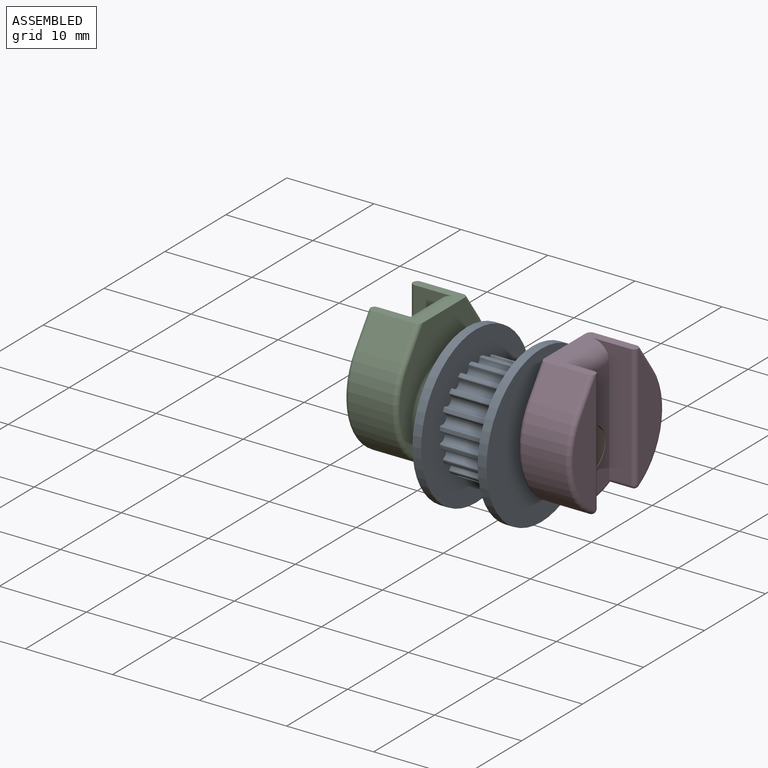
[diagram: assembled view]
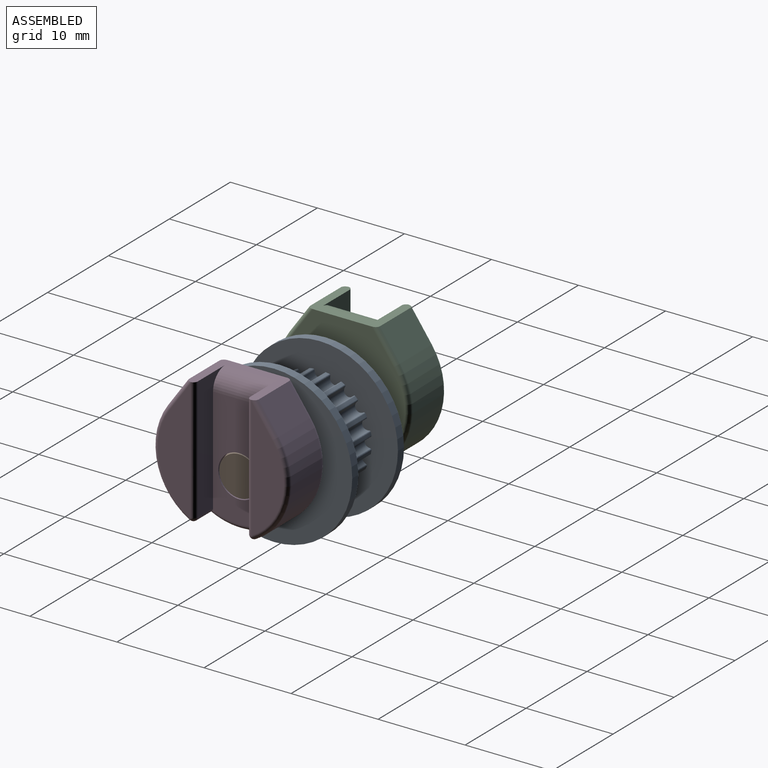
[diagram: assembled view, second angle]
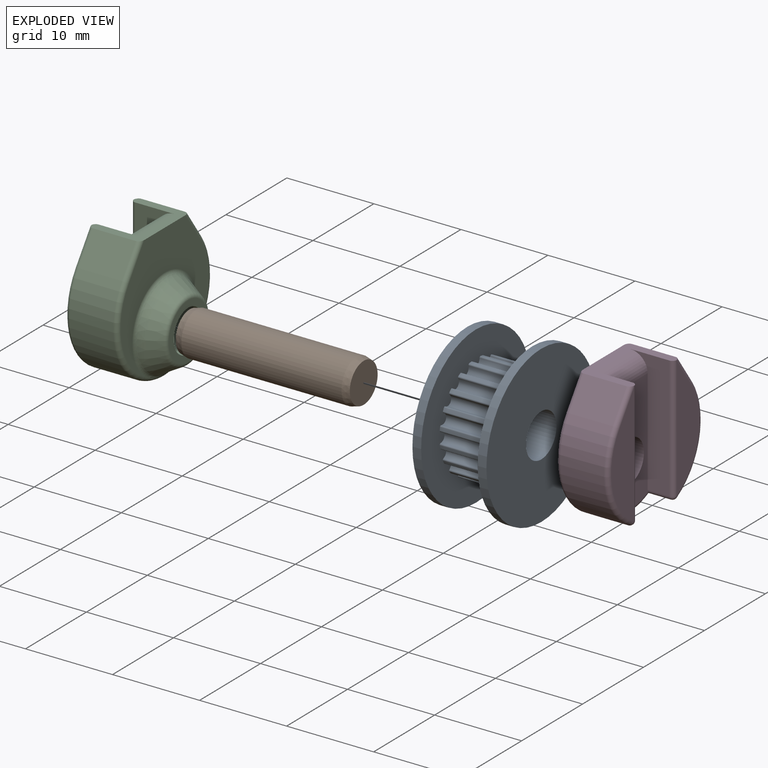
[diagram: exploded view]
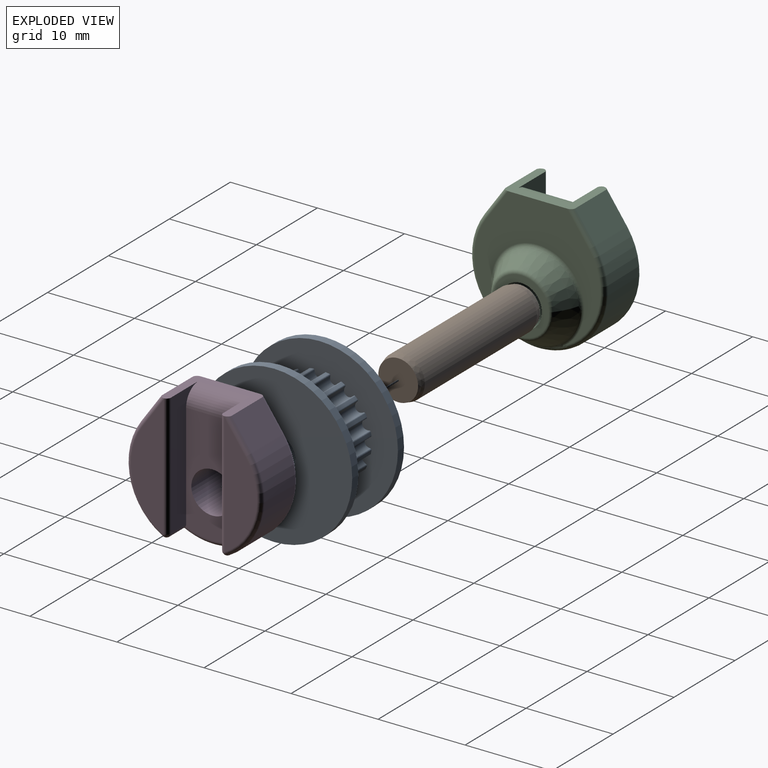
[diagram: exploded view, second angle]
ASSEMBLY  parts=4 mates=3
PART A: 127 faces, bbox 8.5x18x18 mm
  f0: cylinder r=6mm len=6.5mm, axis (-1,0,0), area 2.3mm2, adj f5,f7,f118,f120
  f1: cylinder r=0.15mm len=6.5mm, axis (1,0,0), area 1.6mm2, adj f2,f118,f119,f120
  f2: cylinder r=1mm len=6.5mm, axis (1,0,0), area 2.3mm2, adj f1,f3,f118,f120
  f3: cylinder r=0.56mm len=6.5mm, axis (1,0,0), area 8.1mm2, adj f2,f4,f118,f120
  f4: cylinder r=1mm len=6.5mm, axis (1,0,0), area 2.3mm2, adj f3,f5,f118,f120
  f5: cylinder r=0.15mm len=6.5mm, axis (1,0,0), area 1.6mm2, adj f0,f4,f118,f120
  f6: cylinder r=6mm len=6.5mm, axis (-1,0,0), area 2.3mm2, adj f11,f13,f118,f120
  f7: cylinder r=0.15mm len=6.5mm, axis (1,0,0), area 1.6mm2, adj f0,f8,f118,f120
  f8: cylinder r=1mm len=6.5mm, axis (1,0,0), area 2.3mm2, adj f7,f9,f118,f120
  f9: cylinder r=0.56mm len=6.5mm, axis (1,0,0), area 8.1mm2, adj f8,f10,f118,f120
  f10: cylinder r=1mm len=6.5mm, axis (1,0,0), area 2.3mm2, adj f9,f11,f118,f120
  f11: cylinder r=0.15mm len=6.5mm, axis (1,0,0), area 1.6mm2, adj f6,f10,f118,f120
  f12: cylinder r=6mm len=6.5mm, axis (-1,0,0), area 2.3mm2, adj f17,f19,f118,f120
  f13: cylinder r=0.15mm len=6.5mm, axis (1,0,0), area 1.6mm2, adj f6,f14,f118,f120
  f14: cylinder r=1mm len=6.5mm, axis (1,0,0), area 2.3mm2, adj f13,f15,f118,f120
  f15: cylinder r=0.56mm len=6.5mm, axis (1,0,0), area 8.1mm2, adj f14,f16,f118,f120
  f16: cylinder r=1mm len=6.5mm, axis (1,0,0), area 2.3mm2, adj f15,f17,f118,f120
  f17: cylinder r=0.15mm len=6.5mm, axis (1,0,0), area 1.6mm2, adj f12,f16,f118,f120
  f18: cylinder r=6mm len=6.5mm, axis (-1,0,0), area 2.3mm2, adj f23,f25,f118,f120
  f19: cylinder r=0.15mm len=6.5mm, axis (1,0,0), area 1.6mm2, adj f12,f20,f118,f120
  f20: cylinder r=1mm len=6.5mm, axis (1,0,0), area 2.3mm2, adj f19,f21,f118,f120
  f21: cylinder r=0.56mm len=6.5mm, axis (1,0,0), area 8.1mm2, adj f20,f22,f118,f120
  f22: cylinder r=1mm len=6.5mm, axis (1,0,0), area 2.3mm2, adj f21,f23,f118,f120
  f23: cylinder r=0.15mm len=6.5mm, axis (1,0,0), area 1.6mm2, adj f18,f22,f118,f120
  f24: cylinder r=6mm len=6.5mm, axis (-1,0,0), area 2.3mm2, adj f29,f31,f118,f120
  f25: cylinder r=0.15mm len=6.5mm, axis (1,0,0), area 1.6mm2, adj f18,f26,f118,f120
  f26: cylinder r=1mm len=6.5mm, axis (1,0,0), area 2.3mm2, adj f25,f27,f118,f120
  f27: cylinder r=0.56mm len=6.5mm, axis (1,0,0), area 8.1mm2, adj f26,f28,f118,f120
  f28: cylinder r=1mm len=6.5mm, axis (1,0,0), area 2.3mm2, adj f27,f29,f118,f120
  f29: cylinder r=0.15mm len=6.5mm, axis (1,0,0), area 1.6mm2, adj f24,f28,f118,f120
  f30: cylinder r=6mm len=6.5mm, axis (-1,0,0), area 2.3mm2, adj f35,f37,f118,f120
  f31: cylinder r=0.15mm len=6.5mm, axis (1,0,0), area 1.6mm2, adj f24,f32,f118,f120
  f32: cylinder r=1mm len=6.5mm, axis (1,0,0), area 2.3mm2, adj f31,f33,f118,f120
  f33: cylinder r=0.56mm len=6.5mm, axis (1,0,0), area 8.1mm2, adj f32,f34,f118,f120
  f34: cylinder r=1mm len=6.5mm, axis (1,0,0), area 2.3mm2, adj f33,f35,f118,f120
  f35: cylinder r=0.15mm len=6.5mm, axis (1,0,0), area 1.6mm2, adj f30,f34,f118,f120
  f36: cylinder r=6mm len=6.5mm, axis (-1,0,0), area 2.3mm2, adj f41,f43,f118,f120
  f37: cylinder r=0.15mm len=6.5mm, axis (1,0,0), area 1.6mm2, adj f30,f38,f118,f120
  f38: cylinder r=1mm len=6.5mm, axis (1,0,0), area 2.3mm2, adj f37,f39,f118,f120
  f39: cylinder r=0.56mm len=6.5mm, axis (1,0,0), area 8.1mm2, adj f38,f40,f118,f120
  f40: cylinder r=1mm len=6.5mm, axis (1,0,0), area 2.3mm2, adj f39,f41,f118,f120
  f41: cylinder r=0.15mm len=6.5mm, axis (1,0,0), area 1.6mm2, adj f36,f40,f118,f120
  f42: cylinder r=6mm len=6.5mm, axis (-1,0,0), area 2.3mm2, adj f47,f49,f118,f120
  f43: cylinder r=0.15mm len=6.5mm, axis (1,0,0), area 1.6mm2, adj f36,f44,f118,f120
  f44: cylinder r=1mm len=6.5mm, axis (1,0,0), area 2.3mm2, adj f43,f45,f118,f120
  f45: cylinder r=0.56mm len=6.5mm, axis (1,0,0), area 8.1mm2, adj f44,f46,f118,f120
  f46: cylinder r=1mm len=6.5mm, axis (1,0,0), area 2.3mm2, adj f45,f47,f118,f120
  f47: cylinder r=0.15mm len=6.5mm, axis (1,0,0), area 1.6mm2, adj f42,f46,f118,f120
  f48: cylinder r=6mm len=6.5mm, axis (-1,0,0), area 2.3mm2, adj f53,f55,f118,f120
  f49: cylinder r=0.15mm len=6.5mm, axis (1,0,0), area 1.6mm2, adj f42,f50,f118,f120
  f50: cylinder r=1mm len=6.5mm, axis (1,0,0), area 2.3mm2, adj f49,f51,f118,f120
  f51: cylinder r=0.56mm len=6.5mm, axis (1,0,0), area 8.1mm2, adj f50,f52,f118,f120
  f52: cylinder r=1mm len=6.5mm, axis (1,0,0), area 2.3mm2, adj f51,f53,f118,f120
  f53: cylinder r=0.15mm len=6.5mm, axis (1,0,0), area 1.6mm2, adj f48,f52,f118,f120
  f54: cylinder r=6mm len=6.5mm, axis (-1,0,0), area 2.3mm2, adj f59,f61,f118,f120
  f55: cylinder r=0.15mm len=6.5mm, axis (1,0,0), area 1.6mm2, adj f48,f56,f118,f120
  f56: cylinder r=1mm len=6.5mm, axis (1,0,0), area 2.3mm2, adj f55,f57,f118,f120
  f57: cylinder r=0.56mm len=6.5mm, axis (1,0,0), area 8.1mm2, adj f56,f58,f118,f120
  f58: cylinder r=1mm len=6.5mm, axis (1,0,0), area 2.3mm2, adj f57,f59,f118,f120
  f59: cylinder r=0.15mm len=6.5mm, axis (1,0,0), area 1.6mm2, adj f54,f58,f118,f120
  f60: cylinder r=6mm len=6.5mm, axis (-1,0,0), area 2.3mm2, adj f65,f67,f118,f120
  f61: cylinder r=0.15mm len=6.5mm, axis (1,0,0), area 1.6mm2, adj f54,f62,f118,f120
  f62: cylinder r=1mm len=6.5mm, axis (1,0,0), area 2.3mm2, adj f61,f63,f118,f120
  f63: cylinder r=0.56mm len=6.5mm, axis (1,0,0), area 8.1mm2, adj f62,f64,f118,f120
  f64: cylinder r=1mm len=6.5mm, axis (1,0,0), area 2.3mm2, adj f63,f65,f118,f120
  f65: cylinder r=0.15mm len=6.5mm, axis (1,0,0), area 1.6mm2, adj f60,f64,f118,f120
  f66: cylinder r=6mm len=6.5mm, axis (-1,0,0), area 2.3mm2, adj f71,f73,f118,f120
  f67: cylinder r=0.15mm len=6.5mm, axis (1,0,0), area 1.6mm2, adj f60,f68,f118,f120
  f68: cylinder r=1mm len=6.5mm, axis (1,0,0), area 2.3mm2, adj f67,f69,f118,f120
  f69: cylinder r=0.56mm len=6.5mm, axis (1,0,0), area 8.1mm2, adj f68,f70,f118,f120
  f70: cylinder r=1mm len=6.5mm, axis (1,0,0), area 2.3mm2, adj f69,f71,f118,f120
  f71: cylinder r=0.15mm len=6.5mm, axis (1,0,0), area 1.6mm2, adj f66,f70,f118,f120
  f72: cylinder r=6mm len=6.5mm, axis (-1,0,0), area 2.3mm2, adj f77,f79,f118,f120
  f73: cylinder r=0.15mm len=6.5mm, axis (1,0,0), area 1.6mm2, adj f66,f74,f118,f120
  f74: cylinder r=1mm len=6.5mm, axis (1,0,0), area 2.3mm2, adj f73,f75,f118,f120
  f75: cylinder r=0.56mm len=6.5mm, axis (1,0,0), area 8.1mm2, adj f74,f76,f118,f120
  f76: cylinder r=1mm len=6.5mm, axis (1,0,0), area 2.3mm2, adj f75,f77,f118,f120
  f77: cylinder r=0.15mm len=6.5mm, axis (1,0,0), area 1.6mm2, adj f72,f76,f118,f120
  f78: cylinder r=6mm len=6.5mm, axis (-1,0,0), area 2.3mm2, adj f83,f85,f118,f120
  f79: cylinder r=0.15mm len=6.5mm, axis (1,0,0), area 1.6mm2, adj f72,f80,f118,f120
  f80: cylinder r=1mm len=6.5mm, axis (1,0,0), area 2.3mm2, adj f79,f81,f118,f120
  f81: cylinder r=0.56mm len=6.5mm, axis (1,0,0), area 8.1mm2, adj f80,f82,f118,f120
  f82: cylinder r=1mm len=6.5mm, axis (1,0,0), area 2.3mm2, adj f81,f83,f118,f120
  f83: cylinder r=0.15mm len=6.5mm, axis (1,0,0), area 1.6mm2, adj f78,f82,f118,f120
  f84: cylinder r=6mm len=6.5mm, axis (-1,0,0), area 2.3mm2, adj f89,f91,f118,f120
  f85: cylinder r=0.15mm len=6.5mm, axis (1,0,0), area 1.6mm2, adj f78,f86,f118,f120
  f86: cylinder r=1mm len=6.5mm, axis (1,0,0), area 2.3mm2, adj f85,f87,f118,f120
  f87: cylinder r=0.56mm len=6.5mm, axis (1,0,0), area 8.1mm2, adj f86,f88,f118,f120
  f88: cylinder r=1mm len=6.5mm, axis (1,0,0), area 2.3mm2, adj f87,f89,f118,f120
  f89: cylinder r=0.15mm len=6.5mm, axis (1,0,0), area 1.6mm2, adj f84,f88,f118,f120
  f90: cylinder r=6mm len=6.5mm, axis (-1,0,0), area 2.3mm2, adj f95,f97,f118,f120
  f91: cylinder r=0.15mm len=6.5mm, axis (1,0,0), area 1.6mm2, adj f84,f92,f118,f120
  f92: cylinder r=1mm len=6.5mm, axis (1,0,0), area 2.3mm2, adj f91,f93,f118,f120
  f93: cylinder r=0.56mm len=6.5mm, axis (1,0,0), area 8.1mm2, adj f92,f94,f118,f120
  f94: cylinder r=1mm len=6.5mm, axis (1,0,0), area 2.3mm2, adj f93,f95,f118,f120
  f95: cylinder r=0.15mm len=6.5mm, axis (1,0,0), area 1.6mm2, adj f90,f94,f118,f120
  f96: cylinder r=6mm len=6.5mm, axis (-1,0,0), area 2.3mm2, adj f101,f103,f118,f120
  f97: cylinder r=0.15mm len=6.5mm, axis (1,0,0), area 1.6mm2, adj f90,f98,f118,f120
  f98: cylinder r=1mm len=6.5mm, axis (1,0,0), area 2.3mm2, adj f97,f99,f118,f120
  f99: cylinder r=0.56mm len=6.5mm, axis (1,0,0), area 8.1mm2, adj f98,f100,f118,f120
  f100: cylinder r=1mm len=6.5mm, axis (1,0,0), area 2.3mm2, adj f99,f101,f118,f120
  f101: cylinder r=0.15mm len=6.5mm, axis (1,0,0), area 1.6mm2, adj f96,f100,f118,f120
  f102: cylinder r=6mm len=6.5mm, axis (-1,0,0), area 2.3mm2, adj f107,f109,f118,f120
  f103: cylinder r=0.15mm len=6.5mm, axis (1,0,0), area 1.6mm2, adj f96,f104,f118,f120
  f104: cylinder r=1mm len=6.5mm, axis (1,0,0), area 2.3mm2, adj f103,f105,f118,f120
  f105: cylinder r=0.56mm len=6.5mm, axis (1,0,0), area 8.1mm2, adj f104,f106,f118,f120
  f106: cylinder r=1mm len=6.5mm, axis (1,0,0), area 2.3mm2, adj f105,f107,f118,f120
  f107: cylinder r=0.15mm len=6.5mm, axis (1,0,0), area 1.6mm2, adj f102,f106,f118,f120
  f108: cylinder r=6mm len=6.5mm, axis (-1,0,0), area 2.3mm2, adj f113,f118,f120,f122
  f109: cylinder r=0.15mm len=6.5mm, axis (1,0,0), area 1.6mm2, adj f102,f110,f118,f120
  f110: cylinder r=1mm len=6.5mm, axis (1,0,0), area 2.3mm2, adj f109,f111,f118,f120
  f111: cylinder r=0.56mm len=6.5mm, axis (1,0,0), area 8.1mm2, adj f110,f112,f118,f120
  f112: cylinder r=1mm len=6.5mm, axis (1,0,0), area 2.3mm2, adj f111,f113,f118,f120
  f113: cylinder r=0.15mm len=6.5mm, axis (1,0,0), area 1.6mm2, adj f108,f112,f118,f120
  f114: plane 18x18mm, normal (-1,0,0), area 234.8mm2, adj f115,f121
  f115: cylinder r=2.5mm len=8.5mm, axis (-1,0,0), area 133.5mm2, adj f114,f116
  f116: plane 18x18mm, normal (1,0,0), area 234.8mm2, adj f115,f117
  f117: cylinder r=9mm len=18mm, axis (-1,0,0), area 56.5mm2, adj f116,f118
  f118: plane 18x18mm, normal (-1,0,0), area 157.8mm2, adj f0,f1,f2,f3,f4,f5,f6,f7
  f119: cylinder r=6mm len=6.5mm, axis (-1,0,0), area 2.3mm2, adj f1,f118,f120,f126
  f120: plane 18x18mm, normal (1,0,0), area 157.8mm2, adj f0,f1,f2,f3,f4,f5,f6,f7
  f121: cylinder r=9mm len=18mm, axis (-1,0,0), area 56.5mm2, adj f114,f120
  f122: cylinder r=0.15mm len=6.5mm, axis (1,0,0), area 1.6mm2, adj f108,f118,f120,f123
  f123: cylinder r=1mm len=6.5mm, axis (1,0,0), area 2.3mm2, adj f118,f120,f122,f124
  f124: cylinder r=0.56mm len=6.5mm, axis (1,0,0), area 8.1mm2, adj f118,f120,f123,f125
  f125: cylinder r=1mm len=6.5mm, axis (1,0,0), area 2.3mm2, adj f118,f120,f124,f126
  f126: cylinder r=0.15mm len=6.5mm, axis (1,0,0), area 1.6mm2, adj f118,f119,f120,f125
PART B: 5 faces, bbox 20x5x5 mm
  f0: plane 4.57x4.57mm, normal (-1,0,0), area 16.4mm2, adj f4
  f1: plane 4.57x4.57mm, normal (1,0,0), area 16.4mm2, adj f2
  f2: cone r=2.5mm half-angle=15deg, axis (-1,0,0), area 12.5mm2, adj f1,f3
  f3: cylinder r=2.5mm len=18.4mm, axis (1,0,0), area 289mm2, adj f2,f4
  f4: cone r=2.29mm half-angle=15deg, axis (1,0,0), area 12.5mm2, adj f0,f3
PART C: 32 faces, bbox 8.7x16.8x16.4 mm
  f0: plane 13x6.11mm, normal (1,0,0), area 58.6mm2, adj f4,f9,f11,f19,f20,f21,f31
  f1: plane 8x6mm, normal (0,0,1), area 17.6mm2, adj f2,f5,f6,f9,f11,f15,f17,f23
  f2: plane 5x3.26mm, normal (0,-0.82,0.58), area 20mm2, adj f1,f3,f15,f30
  f3: cylinder r=7.75mm len=15.5mm, axis (1,0,0), area 146.4mm2, adj f2,f5,f16,f19,f20,f21,f24,f27
  f4: cylinder r=2.4mm len=5.7mm, axis (1,0,0), area 86mm2, adj f0,f8
  f5: plane 5x3.26mm, normal (0,0.82,0.58), area 20mm2, adj f1,f3,f25,f26
  f6: plane 14.5x14.2mm, normal (-1,0,0), area 84.6mm2, adj f1,f13,f26,f27,f29,f30
  f7: cone r=3.5mm half-angle=30deg, axis (1,0,0), area 68.3mm2, adj f13,f14
  f8: plane 6.42x6.42mm, normal (-1,0,0), area 14.3mm2, adj f4,f14
  f9: plane 14.1x4.5mm, normal (0,1,0), area 36.1mm2, adj f0,f1,f17,f19,f31
  f10: plane 13.94x3.75mm, normal (1,0,0), area 35mm2, adj f15,f16,f17
  f11: plane 14.1x4.5mm, normal (0,-1,0), area 36.1mm2, adj f0,f1,f21,f23,f31
  f12: plane 13.94x3.75mm, normal (1,0,0), area 35mm2, adj f23,f24,f25
  f13: torus R=5.35mm, axis (1,0,0), area 16mm2, adj f6,f7,f28
  f14: torus R=3.21mm, axis (1,0,0), area 11.4mm2, adj f7,f8
  f15: cylinder r=0.5mm len=3.81mm, axis (0,-0.58,-0.82), area 3.2mm2, adj f1,f2,f10,f16,f17
  f16: torus R=7.25mm, axis (1,0,0), area 10mm2, adj f3,f10,f15,f18
  f17: cylinder r=0.5mm len=14.1mm, axis (0,0,-1), area 11.1mm2, adj f1,f9,f10,f15,f18
  f18: sphere r=0.5mm, area 0.5mm2, adj f16,f17,f19
  f19: cylinder r=0.5mm len=3mm, axis (1,0,0), area 2.7mm2, adj f0,f3,f9,f18,f20
  f20: torus R=7.25mm, axis (1,0,0), area 5.5mm2, adj f0,f3,f19,f21
  f21: cylinder r=0.5mm len=3mm, axis (1,0,0), area 2.7mm2, adj f0,f3,f11,f20,f22
  f22: sphere r=0.5mm, area 0.5mm2, adj f21,f23,f24
  f23: cylinder r=0.5mm len=14.1mm, axis (0,0,1), area 11.1mm2, adj f1,f11,f12,f22,f25
  f24: torus R=7.25mm, axis (1,0,0), area 10mm2, adj f3,f12,f22,f25
  f25: cylinder r=0.5mm len=3.81mm, axis (0,-0.58,0.82), area 3.2mm2, adj f1,f5,f12,f23,f24
  f26: cylinder r=0.5mm len=3.84mm, axis (0,0.58,-0.82), area 3.2mm2, adj f1,f5,f6,f27
  f27: torus R=7.25mm, axis (1,0,0), area 10.2mm2, adj f3,f6,f26,f28
  f28: bspline ~8.33x1.69mm, area 4.8mm2, adj f3,f13,f27,f29
  f29: torus R=7.25mm, axis (1,0,0), area 10.2mm2, adj f3,f6,f28,f30
  f30: cylinder r=0.5mm len=3.84mm, axis (0,0.58,0.82), area 3.2mm2, adj f1,f2,f6,f29
  f31: cylinder r=2mm len=6mm, axis (0,-1,0), area 18.8mm2, adj f0,f1,f9,f11
PART D: same geometry as C
PLACE A at identity fixed
PLACE B t=(-10.05,0,0)mm
PLACE C rot(axis=(0,0,1),180deg) t=(-9.95,0,0)mm
PLACE D t=(9.95,0,0)mm
MATE fastened B.f2 <-> D.f4  axis (1,0,0) through (9.95,0,0)mm
MATE fastened D.f7 <-> A.f0  axis (-1,0,0) through (4.25,0,0)mm
MATE fastened C.f7 <-> A.f0  axis (1,0,0) through (-4.25,0,0)mm
